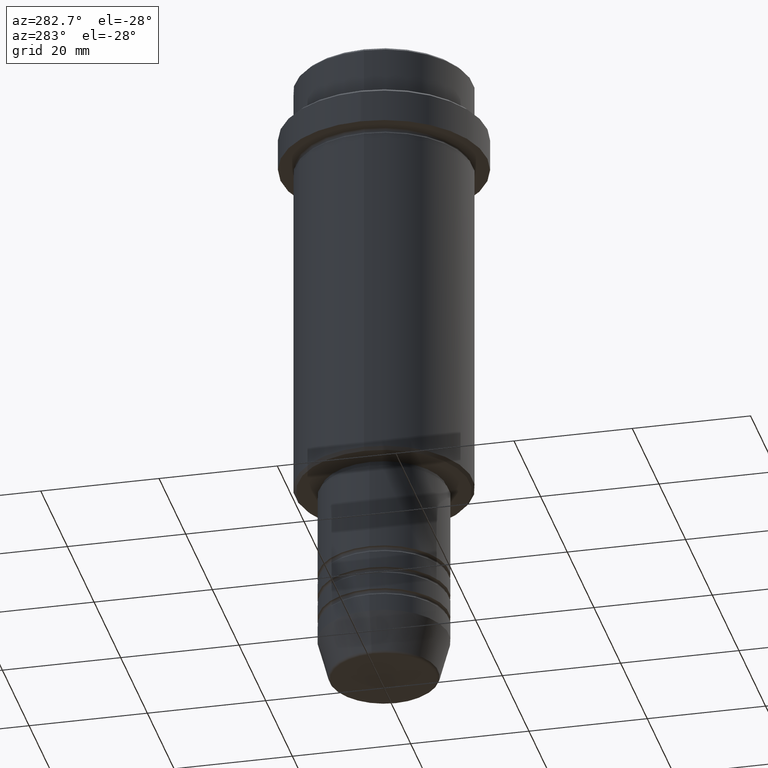
[diagram: clean part render]
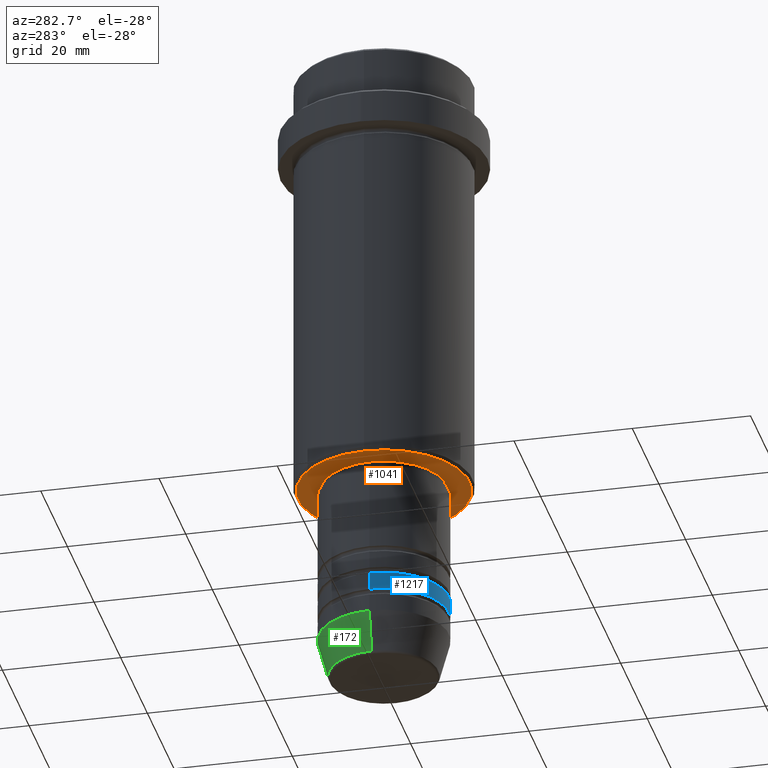
[diagram: same view with three faces highlighted in distinct colors, each labeled with its STEP entity id]
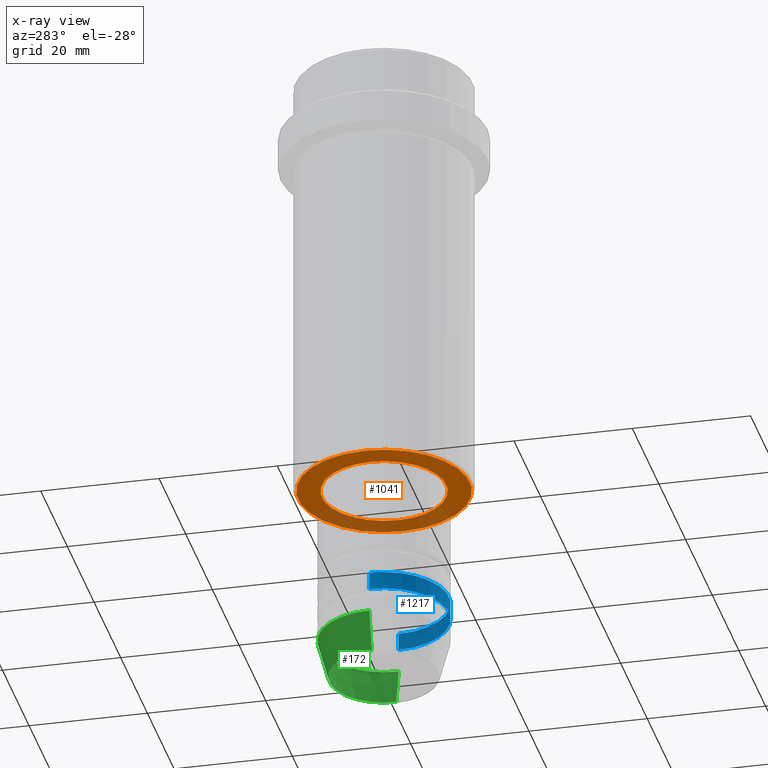
[diagram: x-ray of the same camera — body ghosted, the three highlighted faces saturated]
A machine part, auxiliary view with three faces highlighted in distinct colors.
The next image is the same camera in x-ray (body ghosted, the three faces saturated) — at least one of them is partly hidden behind the body in this view.
Their STEP definitions:

[orange] entity #1041 — the highlighted planar face has unit normal (0, 0, -1).
#3 = CIRCLE ( 'NONE', #946, 14.50000000000001066 ) ;
#7 = DIRECTION ( 'NONE',  ( -1.000000000000000000, 0.000000000000000000, 0.000000000000000000 ) ) ;
#18 = DIRECTION ( 'NONE',  ( 0.000000000000000000, 0.000000000000000000, -1.000000000000000000 ) ) ;
#77 = AXIS2_PLACEMENT_3D ( 'NONE', #194, #402, #632 ) ;
#78 = EDGE_CURVE ( 'NONE', #457, #1231, #1124, .T. ) ;
#139 = CARTESIAN_POINT ( 'NONE',  ( 0.000000000000000000, 0.000000000000000000, -75.00000000000001421 ) ) ;
#177 = AXIS2_PLACEMENT_3D ( 'NONE', #257, #449, #7 ) ;
#194 = CARTESIAN_POINT ( 'NONE',  ( 0.000000000000000000, 0.000000000000000000, -75.00000000000001421 ) ) ;
#216 = EDGE_CURVE ( 'NONE', #1248, #1045, #1106, .T. ) ;
#257 = CARTESIAN_POINT ( 'NONE',  ( 0.000000000000000000, 0.000000000000000000, -75.00000000000001421 ) ) ;
#264 = CIRCLE ( 'NONE', #1401, 10.49999999999999289 ) ;
#287 = DIRECTION ( 'NONE',  ( -1.000000000000000000, 0.000000000000000000, -0.000000000000000000 ) ) ;
#311 = CARTESIAN_POINT ( 'NONE',  ( -10.49999999999999289, 1.285879139104720042E-15, -75.00000000000001421 ) ) ;
#360 = EDGE_LOOP ( 'NONE', ( #1084, #1365 ) ) ;
#402 = DIRECTION ( 'NONE',  ( -0.000000000000000000, -0.000000000000000000, 1.000000000000000000 ) ) ;
#449 = DIRECTION ( 'NONE',  ( 0.000000000000000000, 0.000000000000000000, -1.000000000000000000 ) ) ;
#457 = VERTEX_POINT ( 'NONE', #995 ) ;
#624 = EDGE_CURVE ( 'NONE', #1045, #1248, #264, .T. ) ;
#632 = DIRECTION ( 'NONE',  ( 1.000000000000000000, 0.000000000000000000, 0.000000000000000000 ) ) ;
#633 = FACE_OUTER_BOUND ( 'NONE', #1140, .T. ) ;
#677 = ORIENTED_EDGE ( 'NONE', *, *, #78, .T. ) ;
#718 = CARTESIAN_POINT ( 'NONE',  ( 0.000000000000000000, 0.000000000000000000, -75.00000000000001421 ) ) ;
#724 = CARTESIAN_POINT ( 'NONE',  ( 0.000000000000000000, 15.00000000000000000, -75.00000000000001421 ) ) ;
#824 = CARTESIAN_POINT ( 'NONE',  ( 10.49999999999999289, 0.000000000000000000, -75.00000000000001421 ) ) ;
#834 = DIRECTION ( 'NONE',  ( 0.000000000000000000, 0.000000000000000000, -1.000000000000000000 ) ) ;
#862 = DIRECTION ( 'NONE',  ( 1.000000000000000000, 0.000000000000000000, 0.000000000000000000 ) ) ;
#874 = ORIENTED_EDGE ( 'NONE', *, *, #963, .T. ) ;
#946 = AXIS2_PLACEMENT_3D ( 'NONE', #139, #18, #1339 ) ;
#963 = EDGE_CURVE ( 'NONE', #1231, #457, #3, .T. ) ;
#995 = CARTESIAN_POINT ( 'NONE',  ( -14.50000000000001066, 1.806354028742346591E-15, -75.00000000000001421 ) ) ;
#1041 = ADVANCED_FACE ( 'NONE', ( #633, #1139 ), #1145, .T. ) ;
#1045 = VERTEX_POINT ( 'NONE', #824 ) ;
#1077 = CARTESIAN_POINT ( 'NONE',  ( 14.50000000000001066, 0.000000000000000000, -75.00000000000001421 ) ) ;
#1084 = ORIENTED_EDGE ( 'NONE', *, *, #624, .T. ) ;
#1106 = CIRCLE ( 'NONE', #77, 10.49999999999999289 ) ;
#1124 = CIRCLE ( 'NONE', #177, 14.50000000000001066 ) ;
#1139 = FACE_BOUND ( 'NONE', #360, .T. ) ;
#1140 = EDGE_LOOP ( 'NONE', ( #874, #677 ) ) ;
#1145 = PLANE ( 'NONE',  #1244 ) ;
#1231 = VERTEX_POINT ( 'NONE', #1077 ) ;
#1244 = AXIS2_PLACEMENT_3D ( 'NONE', #724, #834, #287 ) ;
#1248 = VERTEX_POINT ( 'NONE', #311 ) ;
#1278 = DIRECTION ( 'NONE',  ( -0.000000000000000000, -0.000000000000000000, 1.000000000000000000 ) ) ;
#1339 = DIRECTION ( 'NONE',  ( -1.000000000000000000, 0.000000000000000000, 0.000000000000000000 ) ) ;
#1365 = ORIENTED_EDGE ( 'NONE', *, *, #216, .T. ) ;
#1401 = AXIS2_PLACEMENT_3D ( 'NONE', #718, #1278, #862 ) ;

[blue] entity #1217 — the highlighted cylindrical surface (partial cylindrical patch) has radius 11 mm, axis along (-0, -0, 1).
#62 = EDGE_LOOP ( 'NONE', ( #1375, #591, #384, #535 ) ) ;
#69 = CARTESIAN_POINT ( 'NONE',  ( 11.00000000000000000, 0.000000000000000000, -98.99999999999990052 ) ) ;
#71 = DIRECTION ( 'NONE',  ( -0.000000000000000000, -0.000000000000000000, 1.000000000000000000 ) ) ;
#76 = VECTOR ( 'NONE', #564, 1000.000000000000000 ) ;
#110 = CARTESIAN_POINT ( 'NONE',  ( 0.000000000000000000, 0.000000000000000000, 0.000000000000000000 ) ) ;
#122 = EDGE_CURVE ( 'NONE', #709, #883, #1134, .T. ) ;
#126 = LINE ( 'NONE', #351, #990 ) ;
#158 = CARTESIAN_POINT ( 'NONE',  ( 11.00000000000000000, 0.000000000000000000, -95.99999999999988631 ) ) ;
#175 = CARTESIAN_POINT ( 'NONE',  ( -11.00000000000000000, 1.347111479062088405E-15, -98.99999999999990052 ) ) ;
#229 = CARTESIAN_POINT ( 'NONE',  ( 0.000000000000000000, 0.000000000000000000, -98.99999999999990052 ) ) ;
#277 = VERTEX_POINT ( 'NONE', #69 ) ;
#280 = EDGE_CURVE ( 'NONE', #883, #932, #658, .T. ) ;
#303 = DIRECTION ( 'NONE',  ( -0.000000000000000000, -0.000000000000000000, 1.000000000000000000 ) ) ;
#351 = CARTESIAN_POINT ( 'NONE',  ( 11.00000000000000000, 0.000000000000000000, 0.000000000000000000 ) ) ;
#384 = ORIENTED_EDGE ( 'NONE', *, *, #1035, .T. ) ;
#533 = CYLINDRICAL_SURFACE ( 'NONE', #553, 11.00000000000000000 ) ;
#535 = ORIENTED_EDGE ( 'NONE', *, *, #280, .F. ) ;
#553 = AXIS2_PLACEMENT_3D ( 'NONE', #110, #303, #1100 ) ;
#559 = DIRECTION ( 'NONE',  ( 1.000000000000000000, 0.000000000000000000, 0.000000000000000000 ) ) ;
#564 = DIRECTION ( 'NONE',  ( -0.000000000000000000, -0.000000000000000000, 1.000000000000000000 ) ) ;
#591 = ORIENTED_EDGE ( 'NONE', *, *, #1300, .T. ) ;
#604 = CARTESIAN_POINT ( 'NONE',  ( -11.00000000000000000, 1.347111479062088405E-15, 0.000000000000000000 ) ) ;
#636 = AXIS2_PLACEMENT_3D ( 'NONE', #962, #838, #1374 ) ;
#658 = CIRCLE ( 'NONE', #636, 11.00000000000000000 ) ;
#690 = AXIS2_PLACEMENT_3D ( 'NONE', #229, #1277, #559 ) ;
#709 = VERTEX_POINT ( 'NONE', #175 ) ;
#838 = DIRECTION ( 'NONE',  ( -0.000000000000000000, -0.000000000000000000, 1.000000000000000000 ) ) ;
#883 = VERTEX_POINT ( 'NONE', #1417 ) ;
#932 = VERTEX_POINT ( 'NONE', #158 ) ;
#962 = CARTESIAN_POINT ( 'NONE',  ( 0.000000000000000000, 0.000000000000000000, -95.99999999999988631 ) ) ;
#990 = VECTOR ( 'NONE', #71, 1000.000000000000000 ) ;
#1035 = EDGE_CURVE ( 'NONE', #277, #932, #126, .T. ) ;
#1100 = DIRECTION ( 'NONE',  ( 1.000000000000000000, 0.000000000000000000, 0.000000000000000000 ) ) ;
#1134 = LINE ( 'NONE', #604, #76 ) ;
#1217 = ADVANCED_FACE ( 'NONE', ( #1299 ), #533, .T. ) ;
#1222 = CIRCLE ( 'NONE', #690, 11.00000000000000000 ) ;
#1277 = DIRECTION ( 'NONE',  ( -0.000000000000000000, -0.000000000000000000, 1.000000000000000000 ) ) ;
#1299 = FACE_OUTER_BOUND ( 'NONE', #62, .T. ) ;
#1300 = EDGE_CURVE ( 'NONE', #709, #277, #1222, .T. ) ;
#1374 = DIRECTION ( 'NONE',  ( 1.000000000000000000, 0.000000000000000000, 0.000000000000000000 ) ) ;
#1375 = ORIENTED_EDGE ( 'NONE', *, *, #122, .F. ) ;
#1417 = CARTESIAN_POINT ( 'NONE',  ( -11.00000000000000000, 1.347111479062088405E-15, -95.99999999999988631 ) ) ;

[green] entity #172 — the highlighted conical surface has half-angle 15 deg.
#84 = ORIENTED_EDGE ( 'NONE', *, *, #1138, .F. ) ;
#131 = VECTOR ( 'NONE', #622, 1000.000000000000000 ) ;
#136 = CARTESIAN_POINT ( 'NONE',  ( 0.000000000000000000, 0.000000000000000000, -103.0000000000000142 ) ) ;
#149 = EDGE_LOOP ( 'NONE', ( #1148, #897, #1252, #84 ) ) ;
#152 = AXIS2_PLACEMENT_3D ( 'NONE', #136, #243, #1319 ) ;
#172 = ADVANCED_FACE ( 'NONE', ( #1335 ), #680, .T. ) ;
#186 = VERTEX_POINT ( 'NONE', #1144 ) ;
#243 = DIRECTION ( 'NONE',  ( -0.000000000000000000, -0.000000000000000000, 1.000000000000000000 ) ) ;
#278 = CARTESIAN_POINT ( 'NONE',  ( 11.00000000000000000, 0.000000000000000000, -103.0000000000000142 ) ) ;
#337 = CIRCLE ( 'NONE', #152, 11.00000000000000000 ) ;
#345 = DIRECTION ( 'NONE',  ( 1.000000000000000000, 0.000000000000000000, 0.000000000000000000 ) ) ;
#371 = CARTESIAN_POINT ( 'NONE',  ( 0.000000000000000000, 0.000000000000000000, -103.0000000000000142 ) ) ;
#398 = LINE ( 'NONE', #278, #131 ) ;
#427 = EDGE_CURVE ( 'NONE', #1395, #186, #1096, .T. ) ;
#447 = DIRECTION ( 'NONE',  ( -0.2588190451025213501, 3.169619151431772337E-17, 0.9659258262890680902 ) ) ;
#534 = EDGE_CURVE ( 'NONE', #1257, #186, #337, .T. ) ;
#563 = VERTEX_POINT ( 'NONE', #1033 ) ;
#577 = AXIS2_PLACEMENT_3D ( 'NONE', #888, #1391, #885 ) ;
#622 = DIRECTION ( 'NONE',  ( 0.2588190451025213501, 0.000000000000000000, 0.9659258262890680902 ) ) ;
#668 = CARTESIAN_POINT ( 'NONE',  ( 11.00000000000000000, 0.000000000000000000, -103.0000000000000142 ) ) ;
#680 = CONICAL_SURFACE ( 'NONE', #1240, 11.00000000000000000, 0.2617993877991500740 ) ;
#778 = CARTESIAN_POINT ( 'NONE',  ( -11.00000000000000000, 1.347111479062088405E-15, -103.0000000000000142 ) ) ;
#885 = DIRECTION ( 'NONE',  ( 1.000000000000000000, 0.000000000000000000, 0.000000000000000000 ) ) ;
#888 = CARTESIAN_POINT ( 'NONE',  ( 0.000000000000000000, 0.000000000000000000, -109.6294095225512564 ) ) ;
#897 = ORIENTED_EDGE ( 'NONE', *, *, #427, .T. ) ;
#973 = CIRCLE ( 'NONE', #577, 9.223655072137187716 ) ;
#1001 = DIRECTION ( 'NONE',  ( -0.000000000000000000, -0.000000000000000000, 1.000000000000000000 ) ) ;
#1010 = CARTESIAN_POINT ( 'NONE',  ( -9.223655072137187716, 1.238341722557647004E-15, -109.6294095225512564 ) ) ;
#1033 = CARTESIAN_POINT ( 'NONE',  ( 9.223655072137187716, 0.000000000000000000, -109.6294095225512564 ) ) ;
#1096 = LINE ( 'NONE', #778, #1352 ) ;
#1138 = EDGE_CURVE ( 'NONE', #563, #1257, #398, .T. ) ;
#1144 = CARTESIAN_POINT ( 'NONE',  ( -11.00000000000000000, 1.347111479062088405E-15, -103.0000000000000142 ) ) ;
#1148 = ORIENTED_EDGE ( 'NONE', *, *, #1213, .T. ) ;
#1213 = EDGE_CURVE ( 'NONE', #563, #1395, #973, .T. ) ;
#1240 = AXIS2_PLACEMENT_3D ( 'NONE', #371, #1001, #345 ) ;
#1252 = ORIENTED_EDGE ( 'NONE', *, *, #534, .F. ) ;
#1257 = VERTEX_POINT ( 'NONE', #668 ) ;
#1319 = DIRECTION ( 'NONE',  ( 1.000000000000000000, 0.000000000000000000, 0.000000000000000000 ) ) ;
#1335 = FACE_OUTER_BOUND ( 'NONE', #149, .T. ) ;
#1352 = VECTOR ( 'NONE', #447, 1000.000000000000000 ) ;
#1391 = DIRECTION ( 'NONE',  ( -0.000000000000000000, -0.000000000000000000, 1.000000000000000000 ) ) ;
#1395 = VERTEX_POINT ( 'NONE', #1010 ) ;